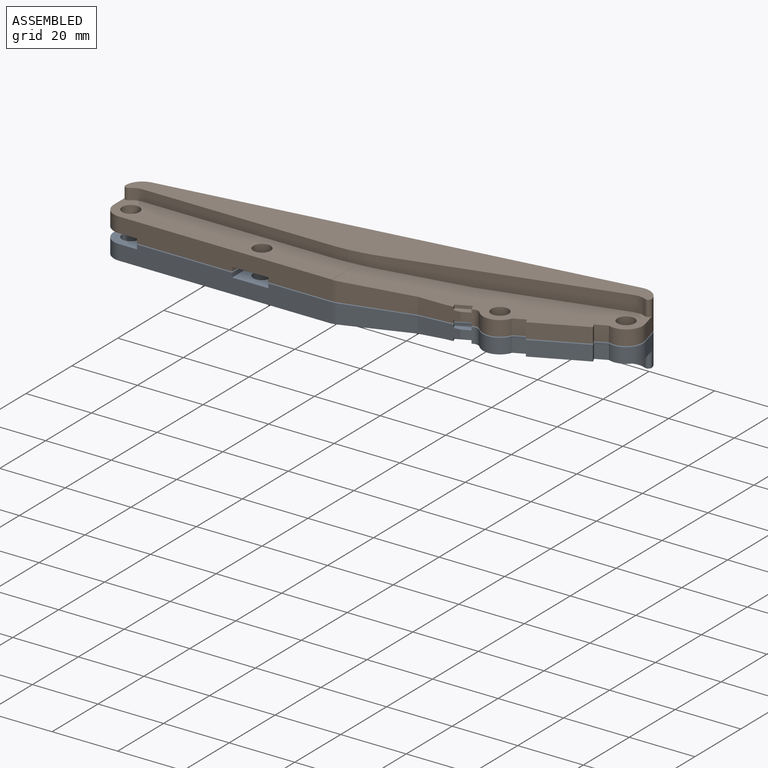
[diagram: assembled view]
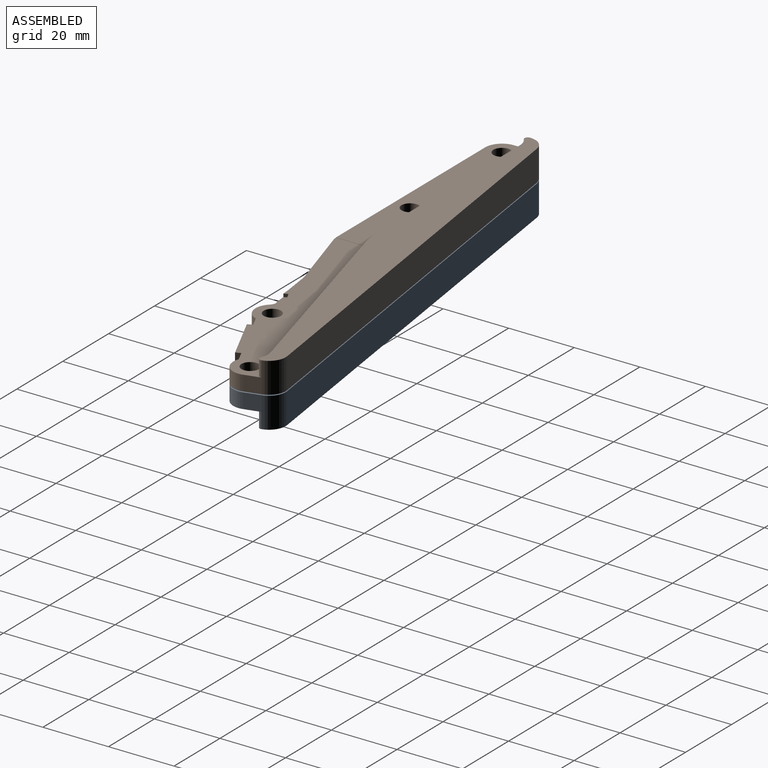
[diagram: assembled view, second angle]
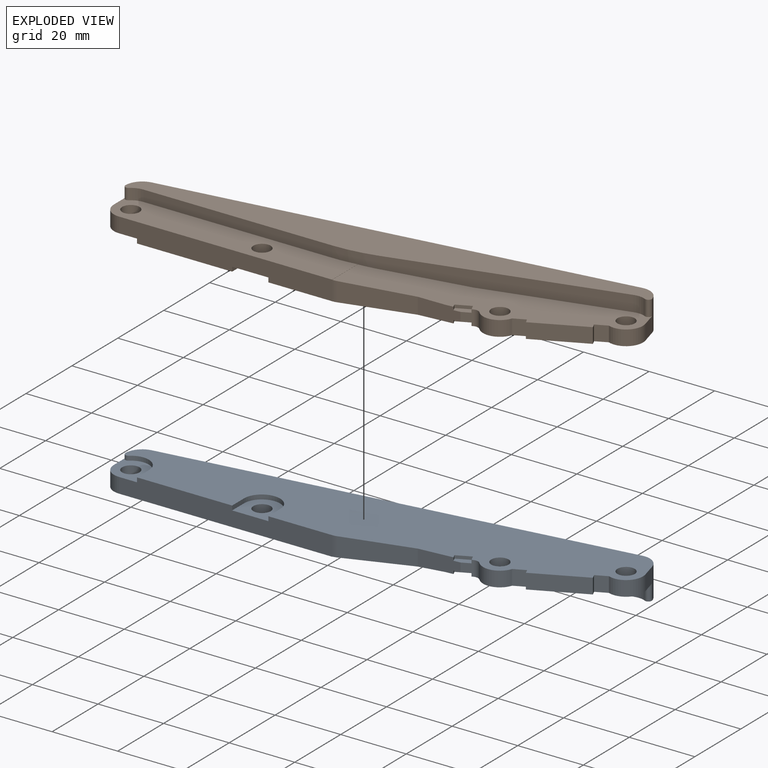
[diagram: exploded view]
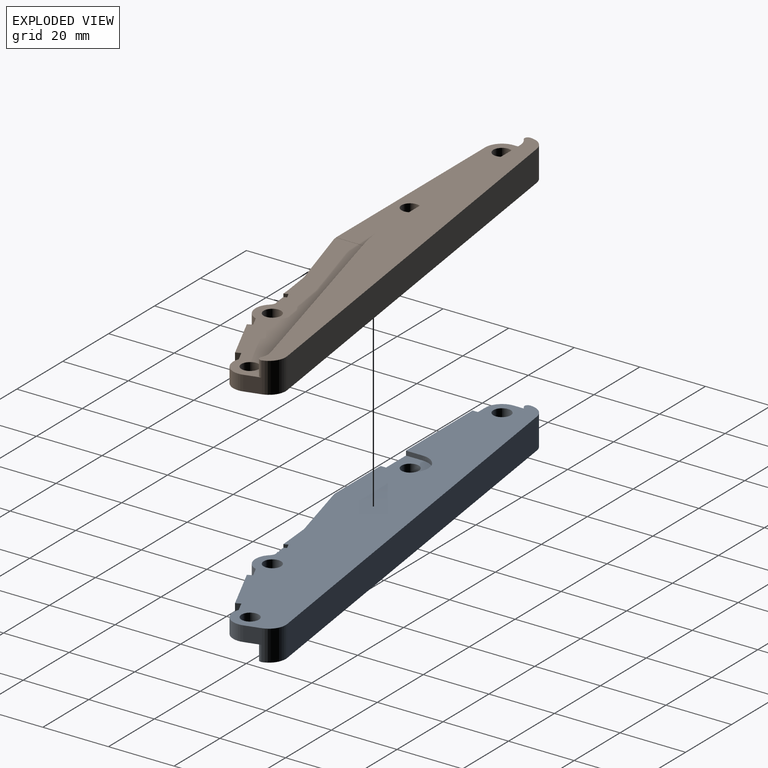
[diagram: exploded view, second angle]
ASSEMBLY  parts=2 mates=2
PART A: 56 faces, bbox 147.7x34.5x9.4 mm
  f0: plane 1.81x0.95mm, normal (-0.91,-0.42,0), area 1.9mm2, adj f2,f13,f35,f54
  f1: plane 1.18x0.95mm, normal (0.91,0.42,0), area 1.2mm2, adj f2,f25,f35,f54
  f2: plane 4.26x1.99mm, normal (0.42,-0.91,0), area 4.5mm2, adj f0,f1,f35,f54
  f3: plane 11.05x10.6mm, normal (0,0,1), area 82.3mm2, adj f5,f9,f33,f34,f36,f37,f45
  f4: cylinder r=5.15mm len=5.15mm, axis (0,0,1), area 37.2mm2, adj f5,f7,f10,f11
  f5: plane 65x5.95mm, normal (0,-1,0), area 364.4mm2, adj f3,f4,f6,f10,f11,f23,f32,f33
  f6: plane 11.14x0.04mm, normal (1,0,0), area 0.4mm2, adj f5,f10,f42,f55
  f7: plane 9.35x5mm, normal (-1,0,0), area 23.3mm2, adj f4,f10,f11,f35,f48,f49,f50,f51
  f8: cylinder r=2.65mm len=5.3mm, axis (0,0,1), area 76.6mm2, adj f10,f11
  f9: cylinder r=2.65mm len=5.3mm, axis (0,0,1), area 76.6mm2, adj f3,f10
  f10: plane 70.15x11.14mm, normal (0,0,-1), area 691.4mm2, adj f4,f5,f6,f7,f8,f9,f39,f41
  f11: plane 10.65x10.6mm, normal (0,0,1), area 75.1mm2, adj f4,f5,f7,f8,f31,f32,f40,f44
  f12: plane 1.81x0.95mm, normal (-0.91,-0.42,0), area 1.9mm2, adj f13,f28,f30,f53
  f13: plane 4.6x2.84mm, normal (0.42,-0.91,0), area 9.1mm2, adj f0,f12,f14,f25,f30,f35,f53,f54
  f14: cylinder r=2mm len=4.6mm, axis (0,0,1), area 11.8mm2, adj f13,f15,f30,f35
  f15: cylinder r=5.15mm len=8.75mm, axis (0,0,1), area 49.7mm2, adj f14,f16,f30,f35
  f16: plane 4.6x3.42mm, normal (0.42,-0.91,0), area 17.3mm2, adj f15,f17,f30,f35
  f17: plane 4.6x1.45mm, normal (-0.91,-0.42,0), area 7.4mm2, adj f16,f18,f30,f35
  f18: plane 15.41x7.18mm, normal (0.42,-0.91,0), area 78.2mm2, adj f17,f19,f30,f35
  f19: plane 4.6x1.45mm, normal (0.91,0.42,0), area 7.4mm2, adj f18,f20,f30,f35
  f20: plane 4.6x3.42mm, normal (0.42,-0.91,0), area 17.3mm2, adj f19,f21,f30,f35
  f21: cylinder r=5.15mm len=7.03mm, axis (0,0,1), area 52.3mm2, adj f20,f22,f30,f35
  f22: plane 9.35x4.83mm, normal (0.97,0.26,0), area 23.3mm2, adj f21,f30,f35,f46,f49,f52
  f23: cylinder r=5.15mm len=5.91mm, axis (0,0,1), area 7.9mm2, adj f5,f24,f35,f55
  f24: plane 20.76x5.85mm, normal (0.26,-0.97,0), area 116mm2, adj f23,f25,f35,f55
  f25: plane 12.29x4.95mm, normal (0.09,-1,0), area 54.3mm2, adj f1,f13,f24,f26,f30,f35,f53,f54
  f26: plane 1.18x0.95mm, normal (0.91,0.42,0), area 1.2mm2, adj f25,f28,f30,f53
  f27: cylinder r=2.65mm len=5.3mm, axis (0,0,1), area 76.6mm2, adj f30,f35
  f28: plane 4.26x1.99mm, normal (0.42,-0.91,0), area 4.5mm2, adj f12,f26,f30,f53
  f29: cylinder r=2.65mm len=5.3mm, axis (0,0,1), area 76.6mm2, adj f30,f35
  f30: plane 47.59x24.78mm, normal (0,0,-1), area 571mm2, adj f12,f13,f14,f15,f16,f17,f18,f19
  f31: cylinder r=5.45mm len=5.45mm, axis (0,0,-1), area 11.6mm2, adj f11,f32,f35,f40
  f32: plane 5.15x1.35mm, normal (-1,0,0), area 7mm2, adj f5,f11,f31,f35
  f33: plane 5.15x1.35mm, normal (1,0,0), area 7mm2, adj f3,f5,f34,f35
  f34: cylinder r=5.45mm len=5.45mm, axis (0,0,-1), area 11.6mm2, adj f3,f33,f35,f45
  f35: plane 147.74x34.54mm, normal (0,0,1), area 2744.2mm2, adj f0,f1,f2,f5,f7,f13,f14,f15
  f36: cylinder r=5.45mm len=5.45mm, axis (0,0,-1), area 11.6mm2, adj f3,f35,f37,f45
  f37: plane 5.15x1.35mm, normal (-1,0,0), area 7mm2, adj f3,f5,f35,f36
  f38: plane 65.39x17.52mm, normal (0.26,-0.97,0), area 308.2mm2, adj f30,f42,f43,f49,f55
  f39: cylinder r=5.45mm len=3.51mm, axis (0,0,1), area 13mm2, adj f10,f41,f49,f51
  f40: plane 1.35x0.05mm, normal (0,-1,0), area 0.1mm2, adj f11,f31,f35,f44
  f41: plane 57.7x3.4mm, normal (0,-1,0), area 196.2mm2, adj f10,f39,f42,f49
  f42: cylinder r=50mm len=12.94mm, axis (0,0,1), area 45.4mm2, adj f6,f10,f38,f41,f49,f55
  f43: cylinder r=5.45mm len=4.75mm, axis (0,0,1), area 18.1mm2, adj f30,f38,f49,f52
  f44: cylinder r=5.45mm len=3.51mm, axis (0,0,1), area 5.1mm2, adj f11,f35,f40,f50
  f45: plane 1.35x0.15mm, normal (0,-1,0), area 0.2mm2, adj f3,f34,f35,f36
  f46: cylinder r=5.15mm len=9.35mm, axis (0,0,1), area 69.8mm2, adj f22,f35,f47,f49
  f47: plane 136.15x19.24mm, normal (-0.14,0.99,0), area 1285.7mm2, adj f35,f46,f48,f49
  f48: cylinder r=5.15mm len=9.35mm, axis (0,0,1), area 68.9mm2, adj f7,f35,f47,f49
  f49: plane 146.33x25.45mm, normal (0,0,-1), area 1303.7mm2, adj f7,f22,f38,f39,f41,f42,f43,f46
  f50: cylinder r=1mm len=1.64mm, axis (0,0,1), area 3.1mm2, adj f7,f11,f35,f44
  f51: cylinder r=1mm len=3.4mm, axis (0,0,1), area 7.7mm2, adj f7,f10,f39,f49
  f52: cylinder r=1mm len=4.75mm, axis (0,0,1), area 10.8mm2, adj f22,f30,f43,f49
  f53: plane 5.11x3.17mm, normal (0,0,-1), area 8.7mm2, adj f12,f13,f25,f26,f28
  f54: plane 5.11x3.17mm, normal (0,0,1), area 8.7mm2, adj f0,f1,f2,f13,f25
  f55: plane 30x18.83mm, normal (0.04,0,-1), area 335.8mm2, adj f6,f23,f24,f25,f30,f38,f42
PART B: 56 faces, bbox 147.7x34.5x9.4 mm
  f0: plane 1.81x0.95mm, normal (-0.91,-0.42,0), area 1.9mm2, adj f2,f13,f35,f54
  f1: plane 1.18x0.95mm, normal (0.91,0.42,0), area 1.2mm2, adj f2,f25,f35,f54
  f2: plane 4.26x1.99mm, normal (0.42,-0.91,0), area 4.5mm2, adj f0,f1,f35,f54
  f3: plane 11.05x10.6mm, normal (0,0,-1), area 82.3mm2, adj f6,f10,f33,f34,f36,f37,f41
  f4: plane 10.65x10.6mm, normal (0,0,-1), area 75.1mm2, adj f5,f6,f8,f9,f31,f32,f44,f45
  f5: cylinder r=5.15mm len=5.15mm, axis (0,0,-1), area 37.2mm2, adj f4,f6,f8,f11
  f6: plane 65x5.95mm, normal (0,-1,0), area 364.4mm2, adj f3,f4,f5,f7,f11,f23,f32,f33
  f7: plane 11.14x0.04mm, normal (1,0,0), area 0.4mm2, adj f6,f11,f42,f55
  f8: plane 9.35x5mm, normal (-1,0,0), area 23.3mm2, adj f4,f5,f11,f35,f48,f49,f50,f51
  f9: cylinder r=2.65mm len=5.3mm, axis (0,0,-1), area 76.6mm2, adj f4,f11
  f10: cylinder r=2.65mm len=5.3mm, axis (0,0,-1), area 76.6mm2, adj f3,f11
  f11: plane 70.15x11.14mm, normal (0,0,1), area 691.4mm2, adj f5,f6,f7,f8,f9,f10,f39,f40
  f12: plane 1.81x0.95mm, normal (-0.91,-0.42,0), area 1.9mm2, adj f13,f28,f30,f53
  f13: plane 4.6x2.84mm, normal (0.42,-0.91,0), area 9.1mm2, adj f0,f12,f14,f25,f30,f35,f53,f54
  f14: cylinder r=2mm len=4.6mm, axis (0,0,-1), area 11.8mm2, adj f13,f15,f30,f35
  f15: cylinder r=5.15mm len=8.75mm, axis (0,0,-1), area 49.7mm2, adj f14,f16,f30,f35
  f16: plane 4.6x3.42mm, normal (0.42,-0.91,0), area 17.3mm2, adj f15,f17,f30,f35
  f17: plane 4.6x1.45mm, normal (-0.91,-0.42,0), area 7.4mm2, adj f16,f18,f30,f35
  f18: plane 15.41x7.18mm, normal (0.42,-0.91,0), area 78.2mm2, adj f17,f19,f30,f35
  f19: plane 4.6x1.45mm, normal (0.91,0.42,0), area 7.4mm2, adj f18,f20,f30,f35
  f20: plane 4.6x3.42mm, normal (0.42,-0.91,0), area 17.3mm2, adj f19,f21,f30,f35
  f21: cylinder r=5.15mm len=7.03mm, axis (0,0,-1), area 52.3mm2, adj f20,f22,f30,f35
  f22: plane 9.35x4.83mm, normal (0.97,0.26,0), area 23.3mm2, adj f21,f30,f35,f46,f49,f52
  f23: cylinder r=5.15mm len=5.91mm, axis (0,0,-1), area 7.9mm2, adj f6,f24,f35,f55
  f24: plane 20.76x5.85mm, normal (0.26,-0.97,0), area 116mm2, adj f23,f25,f35,f55
  f25: plane 12.29x4.95mm, normal (0.09,-1,0), area 54.3mm2, adj f1,f13,f24,f26,f30,f35,f53,f54
  f26: plane 1.18x0.95mm, normal (0.91,0.42,0), area 1.2mm2, adj f25,f28,f30,f53
  f27: cylinder r=2.65mm len=5.3mm, axis (0,0,-1), area 76.6mm2, adj f30,f35
  f28: plane 4.26x1.99mm, normal (0.42,-0.91,0), area 4.5mm2, adj f12,f26,f30,f53
  f29: cylinder r=2.65mm len=5.3mm, axis (0,0,-1), area 76.6mm2, adj f30,f35
  f30: plane 47.59x24.78mm, normal (0,0,1), area 571mm2, adj f12,f13,f14,f15,f16,f17,f18,f19
  f31: cylinder r=5.45mm len=5.45mm, axis (0,0,1), area 11.6mm2, adj f4,f32,f35,f45
  f32: plane 5.15x1.35mm, normal (-1,0,0), area 7mm2, adj f4,f6,f31,f35
  f33: plane 5.15x1.35mm, normal (1,0,0), area 7mm2, adj f3,f6,f34,f35
  f34: cylinder r=5.45mm len=5.45mm, axis (0,0,1), area 11.6mm2, adj f3,f33,f35,f41
  f35: plane 147.74x34.54mm, normal (0,0,-1), area 2744.2mm2, adj f0,f1,f2,f6,f8,f13,f14,f15
  f36: cylinder r=5.45mm len=5.45mm, axis (0,0,1), area 11.6mm2, adj f3,f35,f37,f41
  f37: plane 5.15x1.35mm, normal (-1,0,0), area 7mm2, adj f3,f6,f35,f36
  f38: plane 65.39x17.52mm, normal (0.26,-0.97,0), area 308.2mm2, adj f30,f42,f43,f49,f55
  f39: cylinder r=5.45mm len=3.51mm, axis (0,0,-1), area 13mm2, adj f11,f40,f49,f51
  f40: plane 57.7x3.4mm, normal (0,-1,0), area 196.2mm2, adj f11,f39,f42,f49
  f41: plane 1.35x0.15mm, normal (0,-1,0), area 0.2mm2, adj f3,f34,f35,f36
  f42: cylinder r=50mm len=12.94mm, axis (0,0,-1), area 45.4mm2, adj f7,f11,f38,f40,f49,f55
  f43: cylinder r=5.45mm len=4.75mm, axis (0,0,-1), area 18.1mm2, adj f30,f38,f49,f52
  f44: cylinder r=5.45mm len=3.51mm, axis (0,0,-1), area 5.1mm2, adj f4,f35,f45,f50
  f45: plane 1.35x0.05mm, normal (0,-1,0), area 0.1mm2, adj f4,f31,f35,f44
  f46: cylinder r=5.15mm len=9.35mm, axis (0,0,-1), area 69.8mm2, adj f22,f35,f47,f49
  f47: plane 136.15x19.24mm, normal (-0.14,0.99,0), area 1285.7mm2, adj f35,f46,f48,f49
  f48: cylinder r=5.15mm len=9.35mm, axis (0,0,-1), area 68.9mm2, adj f8,f35,f47,f49
  f49: plane 146.33x25.45mm, normal (0,0,1), area 1303.7mm2, adj f8,f22,f38,f39,f40,f42,f43,f46
  f50: cylinder r=1mm len=1.64mm, axis (0,0,-1), area 3.1mm2, adj f4,f8,f35,f44
  f51: cylinder r=1mm len=3.4mm, axis (0,0,-1), area 7.7mm2, adj f8,f11,f39,f49
  f52: cylinder r=1mm len=4.75mm, axis (0,0,-1), area 10.8mm2, adj f22,f30,f43,f49
  f53: plane 5.11x3.17mm, normal (0,0,1), area 8.7mm2, adj f12,f13,f25,f26,f28
  f54: plane 5.11x3.17mm, normal (0,0,-1), area 8.7mm2, adj f0,f1,f2,f13,f25
  f55: plane 30x18.83mm, normal (0.04,0,1), area 335.8mm2, adj f7,f23,f24,f25,f30,f38,f42
PLACE A t=(0,0,-2.97)mm
PLACE B at identity fixed
MATE slider B.f21 <-> A.f21  axis (0,0,-1) through (137.44,19.41,-1.35)mm
MATE slider B.f9 <-> A.f8  axis (0,0,-1) through (0,0,0)mm
